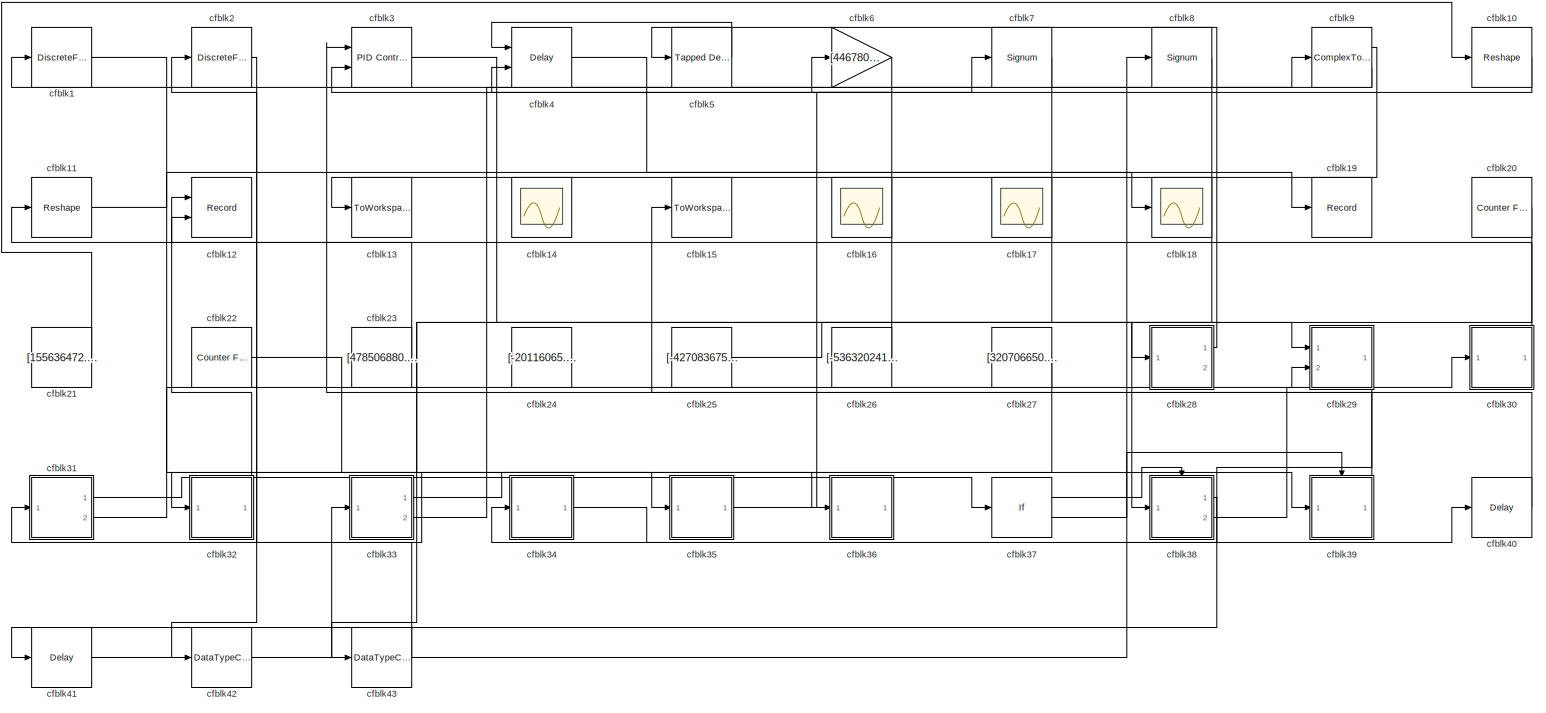
[diagram: root canvas - part 1/1, most of the canvas]
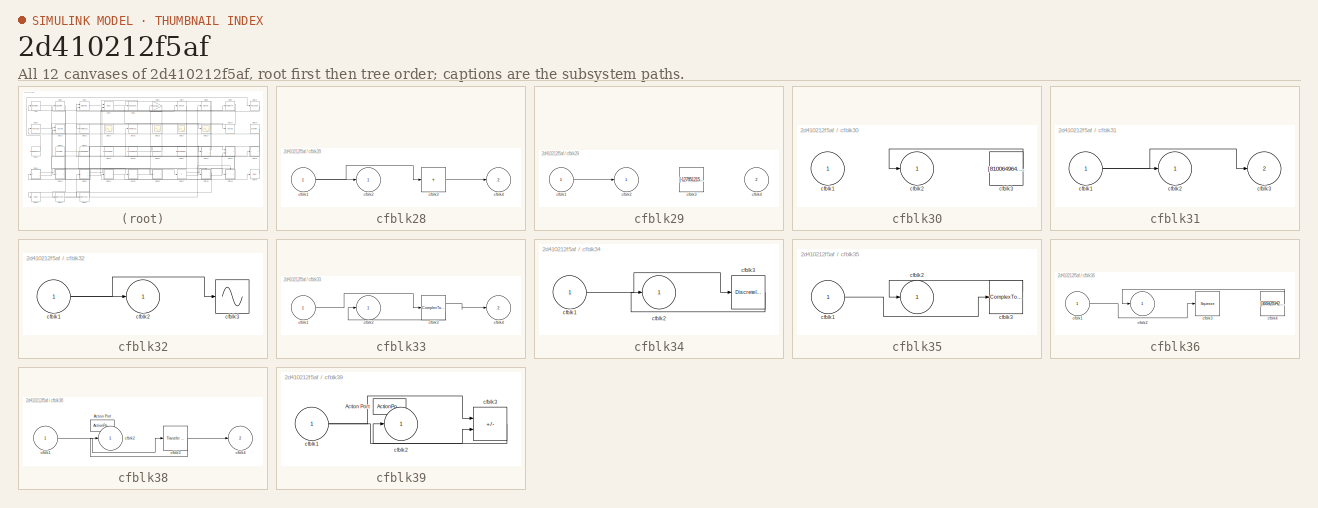
[diagram: thumbnail index - all 12 canvases of the model, root first then tree order]
MODEL slx_2d410212f5af
KIND model
CONFIG AbsTol = auto
CONFIG EnableMultiTasking = off
CONFIG FixedStep = auto
CONFIG MaxStep = auto
CONFIG MinStep = auto
CONFIG RelTol = 1e-3
CONFIG SampleTimeConstraint = Unconstrained
CONFIG SolverName = VariableStepAuto
CONFIG StartTime = 0.0
CONFIG StopTime = 10.0
BLOCK [DiscreteFilter] cfblk1
  InputPortMap = u0
  Ports = [1, 1]
  SampleTime = 1
BLOCK [Reshape] cfblk10
  Ports = [1, 1]
BLOCK [Reshape] cfblk11
  Ports = [1, 1]
BLOCK [Record] cfblk12
  CompatibilityTag = XY
  FileSettingsInternal = {"entries":[{"content":{"excelSettings":{"content":{},"type":"Streamout.ExcelSettings"}},"type":"Streamout.FileSettingStorage","uuid":"a42234f3-ce43-4d62-8183-94350aca9a07"}],"packageUris":["http://schema.mathworks.com/mf0/streamout_blocks/R2020a"],"version":"1.0"}
  Layout = [1 1]
  Ports = [2]
  SignalsInternal = {"entries":[{"content":{"signals":[{"content":{"blockPath":["sampleModel245/cfblk12"],"channel":[],"dimensions":[1],"domain":"sampleModel245/cfblk12","lineColor":"#a2142f","plots":[1],"port":1,"sid":[""],"signalID":9842,"signalName":"cfblk32"},"type":"RecordBlkView.Signal","uuid":"6b7f1dfd-fd8e-4140-a1dc-e27f85fc05a0"},{"content":{"blockPath":["sampleModel245/cfblk12"],"channel":[],"dimensions":[1...<+383ch>
  VisualizationBindings = {"xyplotplugin":{"info":[{"series":[{"bindingParametersList":[{"parameter":"X-Axis","signalID":9842,"signalName":"cfblk32"},{"parameter":"Y-Axis","signalID":9846,"signalName":"cfblk30"}],"seriesID":42464}],"subplotID":1}]}}
BLOCK [ToWorkspace] cfblk13
  FixptAsFi = on
  MaxDataPoints = inf
  Ports = [1]
  SampleTime = -1
  SaveFormat = Timeseries
  VariableName = gticmdm
BLOCK [Scope] cfblk14
  Floating = on
  NumInputPorts = 1
  Ports = []
BLOCK [ToWorkspace] cfblk15
  FixptAsFi = on
  MaxDataPoints = inf
  Ports = [1]
  SampleTime = -1
  SaveFormat = Timeseries
  VariableName = tfdmvrs
BLOCK [Scope] cfblk16
  Floating = on
  NumInputPorts = 1
  Ports = []
BLOCK [Scope] cfblk17
  Floating = on
  NumInputPorts = 1
  Ports = []
BLOCK [Scope] cfblk18
  Floating = off
  NumInputPorts = 1
  Ports = [1]
BLOCK [Record] cfblk19
  FileSettingsInternal = {"entries":[{"content":{"excelSettings":{"content":{},"type":"Streamout.ExcelSettings"}},"type":"Streamout.FileSettingStorage","uuid":"8d9c6872-5cdd-4d69-9216-271c63a9f369"}],"packageUris":["http://schema.mathworks.com/mf0/streamout_blocks/R2020a"],"version":"1.0"}
  Ports = [1]
  SignalsInternal = {"entries":[{"content":{"signals":[{"content":{"blockPath":["sampleModel245/cfblk19"],"channel":[],"dimensions":[1],"domain":"sampleModel245/cfblk19","lineColor":"#77ac30","plots":[1],"port":1,"sid":[""],"signalID":9850,"signalName":"cfblk4"},"type":"RecordBlkView.Signal","uuid":"eaa34cd2-6ae7-4d4b-bce4-618d9346050c"}]},"type":"RecordBlkView.InputSignals","uuid":"4a90d364-c465-433d-9f25-5f9737d349...<+96ch>
  VisualizationBindings = {"sparklinesplugin":{"info":[{"bindingParametersList":[],"subplotID":1}]}}
BLOCK [DiscreteFilter] cfblk2
  InputPortMap = u0
  Ports = [1, 1]
  SampleTime = 1
BLOCK [Reference] cfblk20  REF=simulink/Sources/Counter
Free-Running
  Ports = [0, 1]
  SourceBlock = simulink/Sources/Counter\nFree-Running
  SourceProductBaseCode = SL
  SourceType = Counter Free-Running
BLOCK [Constant] cfblk21
  SampleTime = 1
  Value = [155636472.082470]
BLOCK [Reference] cfblk22  REF=simulink/Sources/Counter
Free-Running
  Ports = [0, 1]
  SourceBlock = simulink/Sources/Counter\nFree-Running
  SourceProductBaseCode = SL
  SourceType = Counter Free-Running
BLOCK [Constant] cfblk23
  SampleTime = 1
  Value = [478506880.725881]
BLOCK [Constant] cfblk24
  SampleTime = 1
  Value = [-20116065.167291]
BLOCK [Constant] cfblk25
  SampleTime = 1
  Value = [-427083675.313238]
BLOCK [Constant] cfblk26
  SampleTime = 1
  Value = [-536320241.652696]
BLOCK [Constant] cfblk27
  SampleTime = 1
  Value = [320706650.580061]
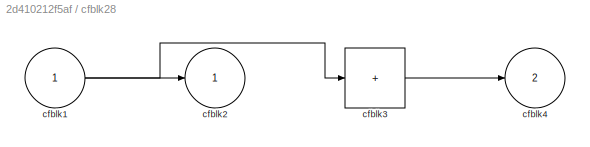
BLOCK [SubSystem] cfblk28
  Ports = [1, 2]
  RequestExecContextInheritance = off
BLOCK [Inport] cfblk28/cfblk1
BLOCK [Outport] cfblk28/cfblk2
BLOCK [Sum] cfblk28/cfblk3
  IconShape = rectangular
  Inputs = +
  Ports = [1, 1]
BLOCK [Outport] cfblk28/cfblk4
  Port = 2
BLOCK [SubSystem] cfblk29
  Ports = [2, 1]
  RequestExecContextInheritance = off
BLOCK [Inport] cfblk29/cfblk1
BLOCK [Outport] cfblk29/cfblk2
BLOCK [Constant] cfblk29/cfblk3
  SampleTime = 1
  Value = [-127851215.579570]
BLOCK [Inport] cfblk29/cfblk4
  Port = 2
BLOCK [Reference] cfblk3  REF=slpidlib/PID Controller (2DOF)
  Ports = [2, 1]
  SourceBlock = slpidlib/PID Controller (2DOF)
  SourceProductBaseCode = SL
  SourceType = PID 2dof
BLOCK [SubSystem] cfblk30
  Ports = [1, 1]
  RequestExecContextInheritance = off
BLOCK [Inport] cfblk30/cfblk1
BLOCK [Outport] cfblk30/cfblk2
BLOCK [Constant] cfblk30/cfblk3
  SampleTime = 1
  Value = [810064964.226122]
BLOCK [SubSystem] cfblk31
  Ports = [1, 2]
  RequestExecContextInheritance = off
BLOCK [Inport] cfblk31/cfblk1
BLOCK [Outport] cfblk31/cfblk2
BLOCK [Outport] cfblk31/cfblk3
  Port = 2
BLOCK [SubSystem] cfblk32
  Ports = [1, 1]
  RequestExecContextInheritance = off
BLOCK [Inport] cfblk32/cfblk1
BLOCK [Outport] cfblk32/cfblk2
BLOCK [Sin] cfblk32/cfblk3
  Ports = [1, 1]
  SampleTime = 0
  TimeSource = Use external signal
BLOCK [SubSystem] cfblk33
  Ports = [1, 2]
  RequestExecContextInheritance = off
BLOCK [Inport] cfblk33/cfblk1
BLOCK [Outport] cfblk33/cfblk2
BLOCK [ComplexToRealImag] cfblk33/cfblk3
  Ports = [1, 2]
BLOCK [Outport] cfblk33/cfblk4
  Port = 2
BLOCK [SubSystem] cfblk34
  Ports = [1, 1]
  RequestExecContextInheritance = off
BLOCK [Inport] cfblk34/cfblk1
BLOCK [Outport] cfblk34/cfblk2
BLOCK [DiscreteIntegrator] cfblk34/cfblk3
  ICPrevOutput = DiscIntNeverNeededParam
  ICPrevScaledInput = DiscIntNeverNeededParam
  InitialConditionSetting = Auto
  Ports = [1, 1]
BLOCK [SubSystem] cfblk35
  Ports = [1, 1]
  RequestExecContextInheritance = off
BLOCK [Inport] cfblk35/cfblk1
BLOCK [Outport] cfblk35/cfblk2
BLOCK [ComplexToMagnitudeAngle] cfblk35/cfblk3
  Ports = [1, 2]
BLOCK [SubSystem] cfblk36
  Ports = [1, 1]
  RequestExecContextInheritance = off
BLOCK [Inport] cfblk36/cfblk1
BLOCK [Outport] cfblk36/cfblk2
BLOCK [Squeeze] cfblk36/cfblk3
BLOCK [Constant] cfblk36/cfblk4
  SampleTime = 1
  Value = [366928342.791959]
BLOCK [If] cfblk37
  IfExpression = u1 >= 0
  Ports = [1, 2]
  SampleTime = 1
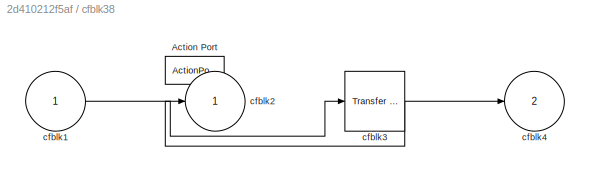
BLOCK [SubSystem] cfblk38
  Ports = [1, 2, 0, 0, 0, 0, 0, 1]
  RequestExecContextInheritance = off
  TreatAsAtomicUnit = on
BLOCK [ActionPort] cfblk38/Action Port
  ActionPortLabel = if(u1 >= 0)
BLOCK [Inport] cfblk38/cfblk1
BLOCK [Outport] cfblk38/cfblk2
BLOCK [Reference] cfblk38/cfblk3  REF=simulink/Discrete/Transfer Fcn
Real Zero
  Ports = [1, 1]
  SourceBlock = simulink/Discrete/Transfer Fcn\nReal Zero
  SourceProductBaseCode = SL
  SourceType = Transfer Fcn Real Zero
BLOCK [Outport] cfblk38/cfblk4
  Port = 2
BLOCK [SubSystem] cfblk39
  Ports = [1, 1, 0, 0, 0, 0, 0, 1]
  RequestExecContextInheritance = off
  TreatAsAtomicUnit = on
BLOCK [ActionPort] cfblk39/Action Port
  ActionPortLabel = else
BLOCK [Inport] cfblk39/cfblk1
BLOCK [Outport] cfblk39/cfblk2
BLOCK [Sum] cfblk39/cfblk3
  IconShape = rectangular
  Inputs = +-
  Ports = [2, 1]
BLOCK [Delay] cfblk4
  DelayLengthSource = Input port
  InputPortMap = u0,p1
  Ports = [2, 1]
  SampleTime = 1
BLOCK [Delay] cfblk40
  InputPortMap = u0
  Ports = [1, 1]
  SampleTime = 1
BLOCK [Delay] cfblk41
  InputPortMap = u0
  Ports = [1, 1]
  SampleTime = 1
BLOCK [DataTypeConversion] cfblk42
  RndMeth = Floor
  SaturateOnIntegerOverflow = off
BLOCK [DataTypeConversion] cfblk43
  RndMeth = Floor
  SaturateOnIntegerOverflow = off
BLOCK [Reference] cfblk5  REF=simulink/Discrete/Tapped Delay
  Ports = [1, 1]
  SourceBlock = simulink/Discrete/Tapped Delay
  SourceProductBaseCode = SL
  SourceType = Tapped Delay Line
BLOCK [Gain] cfblk6
  Gain = [446780914.347008]
BLOCK [Signum] cfblk7
BLOCK [Signum] cfblk8
BLOCK [ComplexToMagnitudeAngle] cfblk9
  Ports = [1, 2]
LINE cfblk10:1 -> cfblk4:2
LINE cfblk11:1 -> cfblk18:1
LINE cfblk1:1 -> cfblk35:1
LINE cfblk20:1 -> cfblk43:1
LINE cfblk21:1 -> cfblk10:1
LINE cfblk22:1 -> cfblk36:1
LINE cfblk23:1 -> cfblk11:1
LINE cfblk25:1 -> cfblk28:1
LINE cfblk26:1 -> cfblk6:1
LINE cfblk27:1 -> cfblk31:1
NET cfblk28/cfblk1:1 -> cfblk28/cfblk2:1, cfblk28/cfblk3:1
LINE cfblk28/cfblk3:1 -> cfblk28/cfblk4:1
LINE cfblk28:1 -> cfblk5:1
LINE cfblk29/cfblk1:1 -> cfblk29/cfblk2:1
LINE cfblk29:1 -> cfblk34:1
LINE cfblk2:1 -> cfblk42:1
LINE cfblk30/cfblk3:1 -> cfblk30/cfblk2:1
LINE cfblk30:1 -> cfblk12:2
NET cfblk31/cfblk1:1 -> cfblk31/cfblk2:1, cfblk31/cfblk3:1
LINE cfblk31:1 -> cfblk37:1
LINE cfblk31:2 -> cfblk29:2
NET cfblk32/cfblk1:1 -> cfblk32/cfblk2:1, cfblk32/cfblk3:1
LINE cfblk32:1 -> cfblk12:1
LINE cfblk33/cfblk1:1 -> cfblk33/cfblk3:1
LINE cfblk33/cfblk3:1 -> cfblk33/cfblk4:1
LINE cfblk33/cfblk3:2 -> cfblk33/cfblk2:1
LINE cfblk33:1 -> cfblk39:1
LINE cfblk33:2 -> cfblk9:1
LINE cfblk34/cfblk1:1 -> cfblk34/cfblk3:1
LINE cfblk34/cfblk3:1 -> cfblk34/cfblk2:1
LINE cfblk34:1 -> cfblk40:1
LINE cfblk35/cfblk1:1 -> cfblk35/cfblk3:1
LINE cfblk35/cfblk3:1 -> cfblk35/cfblk2:1
LINE cfblk35:1 -> cfblk7:1
LINE cfblk36/cfblk1:1 -> cfblk36/cfblk3:1
LINE cfblk36/cfblk4:1 -> cfblk36/cfblk2:1
LINE cfblk37:1 -> cfblk38:ifaction
LINE cfblk37:2 -> cfblk39:ifaction
LINE cfblk38/cfblk1:1 -> cfblk38/cfblk3:1
NET cfblk38/cfblk3:1 -> cfblk38/cfblk2:1, cfblk38/cfblk4:1
LINE cfblk38:1 -> cfblk41:1
LINE cfblk38:2 -> cfblk30:1
NET cfblk39/cfblk1:1 -> cfblk39/cfblk3:1, cfblk39/cfblk3:2
LINE cfblk39/cfblk3:1 -> cfblk39/cfblk2:1
LINE cfblk39:1 -> cfblk15:1
LINE cfblk3:1 -> cfblk29:1
LINE cfblk40:1 -> cfblk3:1
LINE cfblk41:1 -> cfblk8:1
LINE cfblk42:1 -> cfblk33:1
LINE cfblk43:1 -> cfblk2:1
LINE cfblk4:1 -> cfblk19:1
LINE cfblk5:1 -> cfblk4:1
LINE cfblk6:1 -> cfblk3:2
LINE cfblk7:1 -> cfblk32:1
LINE cfblk8:1 -> cfblk38:1
LINE cfblk9:1 -> cfblk13:1
LINE cfblk9:2 -> cfblk1:1
note: NET lines group one-source signal fan-out (src -> all destinations, sorted); 1:1 wires keep LINE
